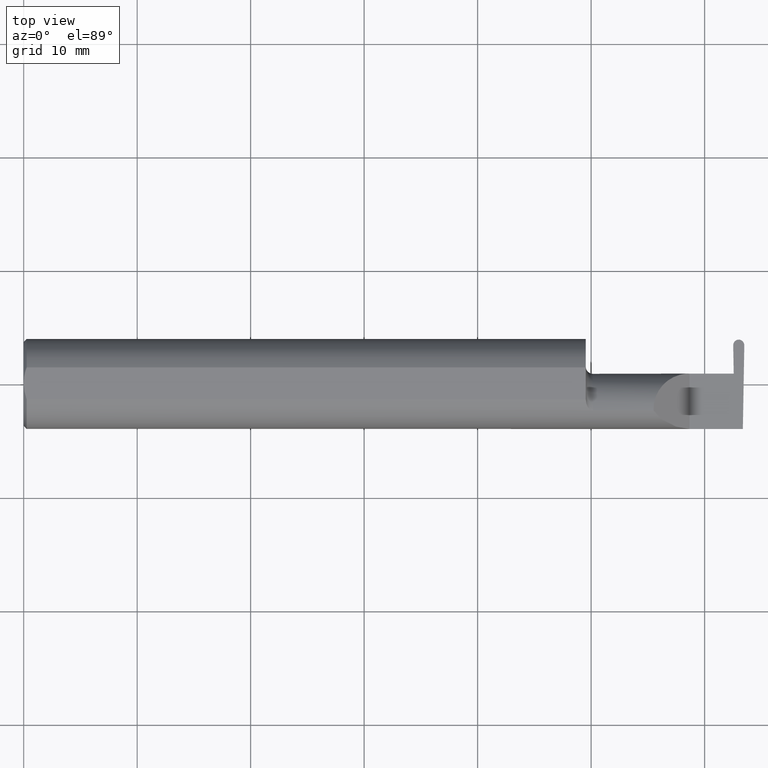
[diagram: clean part render]
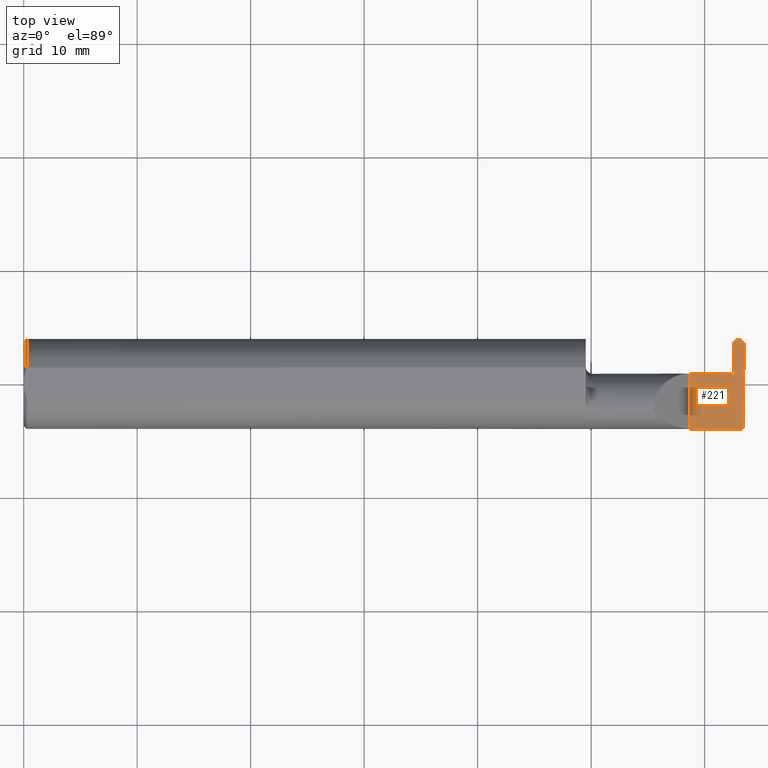
[diagram: same view with one face highlighted and labeled with its STEP entity id]
A machine part, top view. The second image highlights one B-rep face of the part: STEP entity #221.
In plain terms, the highlighted planar face has unit normal (-0, 0, -1).
Its self-contained STEP definition (entity closure, byte-faithful):
#2 = CARTESIAN_POINT ( 'NONE',  ( 2.499981158297549744, 0.1333832200032812054, 0.000000000000000000 ) ) ;
#4 = ORIENTED_EDGE ( 'NONE', *, *, #497, .F. ) ;
#34 = ORIENTED_EDGE ( 'NONE', *, *, #318, .F. ) ;
#45 = DIRECTION ( 'NONE',  ( 1.000000000000000000, -0.000000000000000000, -0.000000000000000000 ) ) ;
#48 = EDGE_CURVE ( 'NONE', #653, #535, #258, .T. ) ;
#57 = CARTESIAN_POINT ( 'NONE',  ( 2.461464574789446136, 0.1342945264389270033, 0.000000000000000000 ) ) ;
#68 = CARTESIAN_POINT ( 'NONE',  ( 2.461480481702449818, 0.1333832200032812332, 0.000000000000000000 ) ) ;
#79 = EDGE_CURVE ( 'NONE', #489, #402, #226, .T. ) ;
#87 = CARTESIAN_POINT ( 'NONE',  ( 2.456122359975489111, 0.03589999999999995278, 0.000000000000000000 ) ) ;
#91 = EDGE_CURVE ( 'NONE', #158, #331, #114, .T. ) ;
#103 = CARTESIAN_POINT ( 'NONE',  ( 2.499997065210553426, 0.1342945264389270033, 0.000000000000000000 ) ) ;
#104 = CARTESIAN_POINT ( 'NONE',  ( 2.469175924963806334, 0.1539000000000003143, 1.422725471777793932E-18 ) ) ;
#112 = CARTESIAN_POINT ( 'NONE',  ( 3.749399456654646757E-32, -0.1560999999999999333, 3.061616997868383634E-16 ) ) ;
#113 = VECTOR ( 'NONE', #180, 39.37007874015748143 ) ;
#114 =( BOUNDED_CURVE ( )  B_SPLINE_CURVE ( 3, ( #386, #652, #597, #280 ),
 .UNSPECIFIED., .F., .F. ) 
 B_SPLINE_CURVE_WITH_KNOTS ( ( 4, 4 ),
 ( 1.677524580234104778, 3.253450286950880344 ),
 .UNSPECIFIED. ) 
 CURVE ( )  GEOMETRIC_REPRESENTATION_ITEM ( )  RATIONAL_B_SPLINE_CURVE ( ( 1.000000000000000000, 0.8035272986452582922, 0.8035272986452582922, 1.000000000000000000 ) ) 
 REPRESENTATION_ITEM ( '' )  );
#125 = EDGE_CURVE ( 'NONE', #640, #170, #550, .T. ) ;
#136 = DIRECTION ( 'NONE',  ( -1.000000000000000000, 0.000000000000000000, 1.224646799147353947E-16 ) ) ;
#140 = VECTOR ( 'NONE', #603, 39.37007874015748143 ) ;
#158 = VERTEX_POINT ( 'NONE', #2 ) ;
#170 = VERTEX_POINT ( 'NONE', #87 ) ;
#177 = CARTESIAN_POINT ( 'NONE',  ( 2.461480481702449818, 0.1333832200032812332, 0.000000000000000000 ) ) ;
#179 = DIRECTION ( 'NONE',  ( -0.01745240643727553193, 0.9998476951563912696, -0.000000000000000000 ) ) ;
#180 = DIRECTION ( 'NONE',  ( 1.000000000000000000, 3.338285537973413126E-17, 0.000000000000000000 ) ) ;
#211 = CARTESIAN_POINT ( 'NONE',  ( 2.480925502065933319, 0.1539000000000000090, 0.000000000000000000 ) ) ;
#216 = VECTOR ( 'NONE', #577, 39.37007874015748143 ) ;
#221 = ADVANCED_FACE ( 'NONE', ( #358 ), #303, .F. ) ;
#226 = LINE ( 'NONE', #112, #526 ) ;
#232 = CARTESIAN_POINT ( 'NONE',  ( 1.949999999999999956, 0.03590000000000000135, 6.735557395310446214E-17 ) ) ;
#249 = VECTOR ( 'NONE', #45, 39.37007874015748143 ) ;
#258 =( BOUNDED_CURVE ( )  B_SPLINE_CURVE ( 3, ( #373, #104, #522, #177 ),
 .UNSPECIFIED., .F., .F. ) 
 B_SPLINE_CURVE_WITH_KNOTS ( ( 4, 4 ),
 ( 6.171327673818470139, 7.747253380535275014 ),
 .UNSPECIFIED. ) 
 CURVE ( )  GEOMETRIC_REPRESENTATION_ITEM ( )  RATIONAL_B_SPLINE_CURVE ( ( 1.000000000000000000, 0.8035272986452512978, 0.8035272986452512978, 1.000000000000000000 ) ) 
 REPRESENTATION_ITEM ( '' )  );
#265 = ORIENTED_EDGE ( 'NONE', *, *, #48, .T. ) ;
#272 = ORIENTED_EDGE ( 'NONE', *, *, #125, .F. ) ;
#279 = CARTESIAN_POINT ( 'NONE',  ( 2.310000000000000053, -0.2500000000000000555, 2.326828918379970872E-17 ) ) ;
#280 = CARTESIAN_POINT ( 'NONE',  ( 2.480925502065933319, 0.1539000000000000090, 0.000000000000000000 ) ) ;
#285 = CARTESIAN_POINT ( 'NONE',  ( 2.463182057637018030, 0.03590000000000000135, 0.000000000000000000 ) ) ;
#290 = AXIS2_PLACEMENT_3D ( 'NONE', #405, #455, #136 ) ;
#298 = CARTESIAN_POINT ( 'NONE',  ( 2.480536137934067575, 0.1539000000000000090, 0.000000000000000000 ) ) ;
#300 = EDGE_LOOP ( 'NONE', ( #630, #265, #4, #34, #272, #546, #499, #362, #427 ) ) ;
#303 = PLANE ( 'NONE',  #290 ) ;
#310 = CARTESIAN_POINT ( 'NONE',  ( -3.937007874019685528E-05, 0.1539000000000000090, 0.000000000000000000 ) ) ;
#313 = CARTESIAN_POINT ( 'NONE',  ( 2.310000000000000053, -0.1560999999999999888, 2.326828918379970872E-17 ) ) ;
#318 = EDGE_CURVE ( 'NONE', #170, #571, #573, .T. ) ;
#319 = EDGE_CURVE ( 'NONE', #158, #489, #478, .T. ) ;
#331 = VERTEX_POINT ( 'NONE', #211 ) ;
#336 = LINE ( 'NONE', #57, #559 ) ;
#358 = FACE_OUTER_BOUND ( 'NONE', #300, .T. ) ;
#362 = ORIENTED_EDGE ( 'NONE', *, *, #319, .F. ) ;
#373 = CARTESIAN_POINT ( 'NONE',  ( 2.480536137934067575, 0.1539000000000000090, 0.000000000000000000 ) ) ;
#386 = CARTESIAN_POINT ( 'NONE',  ( 2.499981158297549744, 0.1333832200032812054, 0.000000000000000000 ) ) ;
#395 = CARTESIAN_POINT ( 'NONE',  ( 2.310000000000000053, 0.03590000000000001523, 6.735557395310446214E-17 ) ) ;
#397 = VECTOR ( 'NONE', #692, 39.37007874015748143 ) ;
#398 = EDGE_CURVE ( 'NONE', #653, #331, #425, .T. ) ;
#402 = VERTEX_POINT ( 'NONE', #313 ) ;
#405 = CARTESIAN_POINT ( 'NONE',  ( 2.500000000000000000, -0.2500000000000000555, 0.000000000000000000 ) ) ;
#425 = LINE ( 'NONE', #310, #249 ) ;
#427 = ORIENTED_EDGE ( 'NONE', *, *, #91, .T. ) ;
#433 = DIRECTION ( 'NONE',  ( -1.000000000000000000, -0.000000000000000000, -0.000000000000000000 ) ) ;
#455 = DIRECTION ( 'NONE',  ( -1.224646799147353947E-16, 0.000000000000000000, -1.000000000000000000 ) ) ;
#478 = LINE ( 'NONE', #103, #397 ) ;
#489 = VERTEX_POINT ( 'NONE', #647 ) ;
#497 = EDGE_CURVE ( 'NONE', #571, #535, #336, .T. ) ;
#499 = ORIENTED_EDGE ( 'NONE', *, *, #79, .F. ) ;
#520 = CARTESIAN_POINT ( 'NONE',  ( 2.463182057637018030, 0.03590000000000000135, 0.000000000000000000 ) ) ;
#522 = CARTESIAN_POINT ( 'NONE',  ( 2.461270922331974642, 0.1453888682971902213, 2.390809088810166648E-18 ) ) ;
#526 = VECTOR ( 'NONE', #433, 39.37007874015748143 ) ;
#535 = VERTEX_POINT ( 'NONE', #68 ) ;
#544 = LINE ( 'NONE', #279, #140 ) ;
#546 = ORIENTED_EDGE ( 'NONE', *, *, #641, .F. ) ;
#550 = LINE ( 'NONE', #232, #113 ) ;
#559 = VECTOR ( 'NONE', #179, 39.37007874015748854 ) ;
#571 = VERTEX_POINT ( 'NONE', #285 ) ;
#573 = LINE ( 'NONE', #520, #216 ) ;
#577 = DIRECTION ( 'NONE',  ( 1.000000000000000000, 7.255572736540064728E-15, -0.000000000000000000 ) ) ;
#597 = CARTESIAN_POINT ( 'NONE',  ( 2.492285715036194116, 0.1538999999999999257, -1.422725471777829947E-18 ) ) ;
#603 = DIRECTION ( 'NONE',  ( -0.000000000000000000, 1.000000000000000000, -0.000000000000000000 ) ) ;
#630 = ORIENTED_EDGE ( 'NONE', *, *, #398, .F. ) ;
#640 = VERTEX_POINT ( 'NONE', #395 ) ;
#641 = EDGE_CURVE ( 'NONE', #402, #640, #544, .T. ) ;
#647 = CARTESIAN_POINT ( 'NONE',  ( 2.494928209896765114, -0.1560999999999999888, 0.000000000000000000 ) ) ;
#652 = CARTESIAN_POINT ( 'NONE',  ( 2.500190717668024920, 0.1453888682971899160, -2.390809088810165492E-18 ) ) ;
#653 = VERTEX_POINT ( 'NONE', #298 ) ;
#692 = DIRECTION ( 'NONE',  ( -0.01745240643727612520, -0.9998476951563912696, 0.000000000000000000 ) ) ;